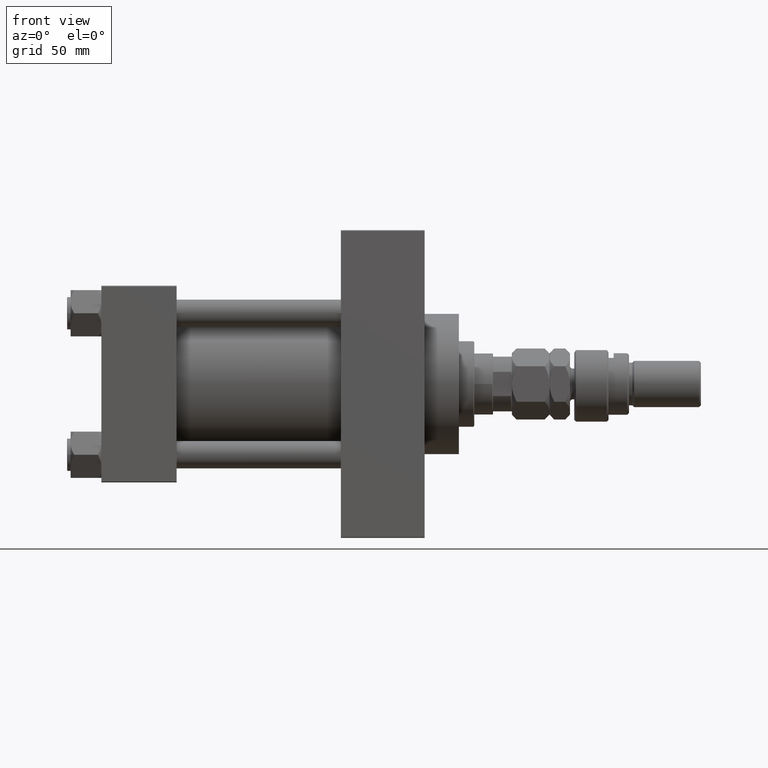
[diagram: clean part render]
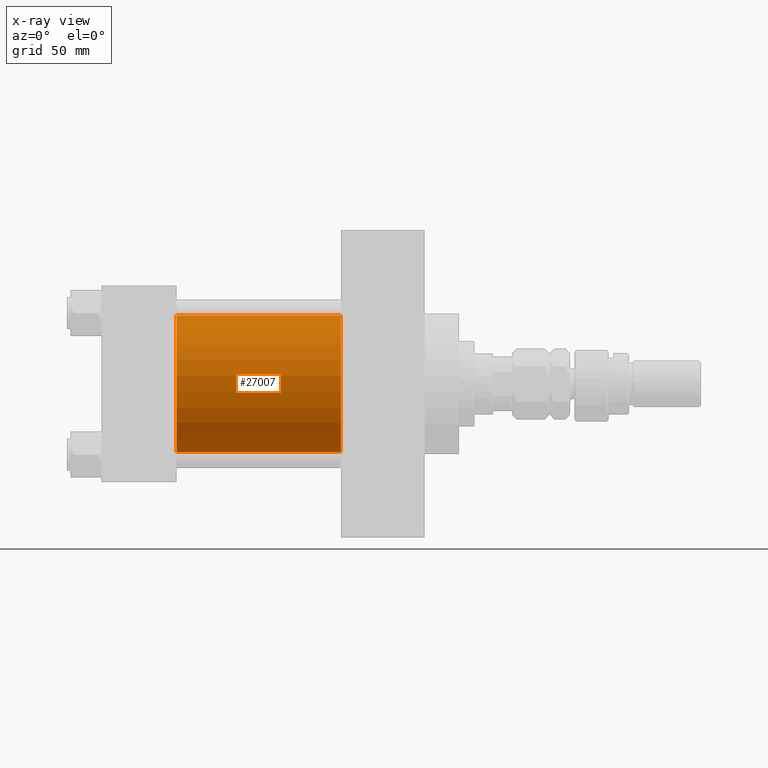
[diagram: x-ray — body ghosted, one internal face saturated and labeled with its STEP entity id]
A machine part, front view, then the same camera in x-ray: the body is ghosted and one INTERNAL B-rep face — a face not visible from any outside direction — is saturated and labeled: STEP entity #27007.
In plain terms, the highlighted cylindrical surface (partial cylindrical patch) has radius 40 mm, axis along (-1, -0, -0).
Its self-contained STEP definition (entity closure, byte-faithful):
#257 = VERTEX_POINT ( 'NONE', #36205 ) ;
#411 = CIRCLE ( 'NONE', #47770, 40.00000000000000000 ) ;
#2501 = DIRECTION ( 'NONE',  ( 0.000000000000000000, 0.000000000000000000, 1.000000000000000000 ) ) ;
#6535 = DIRECTION ( 'NONE',  ( 0.000000000000000000, 0.000000000000000000, -1.000000000000000000 ) ) ;
#6774 = CARTESIAN_POINT ( 'NONE',  ( 140.0000000000000000, -2.602085213965210642E-15, 0.000000000000000000 ) ) ;
#6822 = DIRECTION ( 'NONE',  ( -1.000000000000000000, -0.000000000000000000, -0.000000000000000000 ) ) ;
#6824 = CARTESIAN_POINT ( 'NONE',  ( 140.0000000000000000, -2.602085213965210642E-15, 40.00000000000000000 ) ) ;
#8508 = AXIS2_PLACEMENT_3D ( 'NONE', #6774, #45620, #6535 ) ;
#11927 = DIRECTION ( 'NONE',  ( 0.000000000000000000, 0.000000000000000000, -1.000000000000000000 ) ) ;
#12853 = DIRECTION ( 'NONE',  ( -1.000000000000000000, -0.000000000000000000, -0.000000000000000000 ) ) ;
#15798 = EDGE_CURVE ( 'NONE', #39919, #257, #46044, .T. ) ;
#16947 = LINE ( 'NONE', #40711, #48556 ) ;
#17804 = ORIENTED_EDGE ( 'NONE', *, *, #44676, .T. ) ;
#17943 = VERTEX_POINT ( 'NONE', #35922 ) ;
#17949 = EDGE_CURVE ( 'NONE', #50400, #17943, #411, .T. ) ;
#21577 = ORIENTED_EDGE ( 'NONE', *, *, #34214, .F. ) ;
#22183 = FACE_OUTER_BOUND ( 'NONE', #31697, .T. ) ;
#22685 = LINE ( 'NONE', #6824, #24617 ) ;
#24617 = VECTOR ( 'NONE', #37996, 1000.000000000000000 ) ;
#25996 = ORIENTED_EDGE ( 'NONE', *, *, #17949, .F. ) ;
#27007 = ADVANCED_FACE ( 'NONE', ( #22183 ), #45670, .F. ) ;
#28283 = CARTESIAN_POINT ( 'NONE',  ( 140.0000000000000000, -2.602085213965210642E-15, 40.00000000000000000 ) ) ;
#28527 = DIRECTION ( 'NONE',  ( 1.000000000000000000, 0.000000000000000000, 0.000000000000000000 ) ) ;
#31697 = EDGE_LOOP ( 'NONE', ( #37767, #17804, #25996, #21577 ) ) ;
#34214 = EDGE_CURVE ( 'NONE', #39919, #50400, #22685, .T. ) ;
#35922 = CARTESIAN_POINT ( 'NONE',  ( 44.00000000000000000, 2.296501982624201990E-15, -40.00000000000000000 ) ) ;
#36205 = CARTESIAN_POINT ( 'NONE',  ( 140.0000000000000000, 2.296501982624201990E-15, -40.00000000000000000 ) ) ;
#37743 = CARTESIAN_POINT ( 'NONE',  ( 140.0000000000000000, -2.602085213965210642E-15, 0.000000000000000000 ) ) ;
#37767 = ORIENTED_EDGE ( 'NONE', *, *, #15798, .T. ) ;
#37996 = DIRECTION ( 'NONE',  ( -1.000000000000000000, -0.000000000000000000, -0.000000000000000000 ) ) ;
#39465 = CARTESIAN_POINT ( 'NONE',  ( 44.00000000000000000, -2.602085213965210642E-15, 40.00000000000000000 ) ) ;
#39919 = VERTEX_POINT ( 'NONE', #28283 ) ;
#40711 = CARTESIAN_POINT ( 'NONE',  ( 140.0000000000000000, 2.296501982624201990E-15, -40.00000000000000000 ) ) ;
#43083 = AXIS2_PLACEMENT_3D ( 'NONE', #37743, #6822, #2501 ) ;
#44676 = EDGE_CURVE ( 'NONE', #257, #17943, #16947, .T. ) ;
#45620 = DIRECTION ( 'NONE',  ( 1.000000000000000000, 0.000000000000000000, 0.000000000000000000 ) ) ;
#45670 = CYLINDRICAL_SURFACE ( 'NONE', #43083, 40.00000000000000000 ) ;
#46044 = CIRCLE ( 'NONE', #8508, 40.00000000000000000 ) ;
#47680 = CARTESIAN_POINT ( 'NONE',  ( 44.00000000000000000, -2.602085213965210642E-15, 0.000000000000000000 ) ) ;
#47770 = AXIS2_PLACEMENT_3D ( 'NONE', #47680, #28527, #11927 ) ;
#48556 = VECTOR ( 'NONE', #12853, 1000.000000000000000 ) ;
#50400 = VERTEX_POINT ( 'NONE', #39465 ) ;